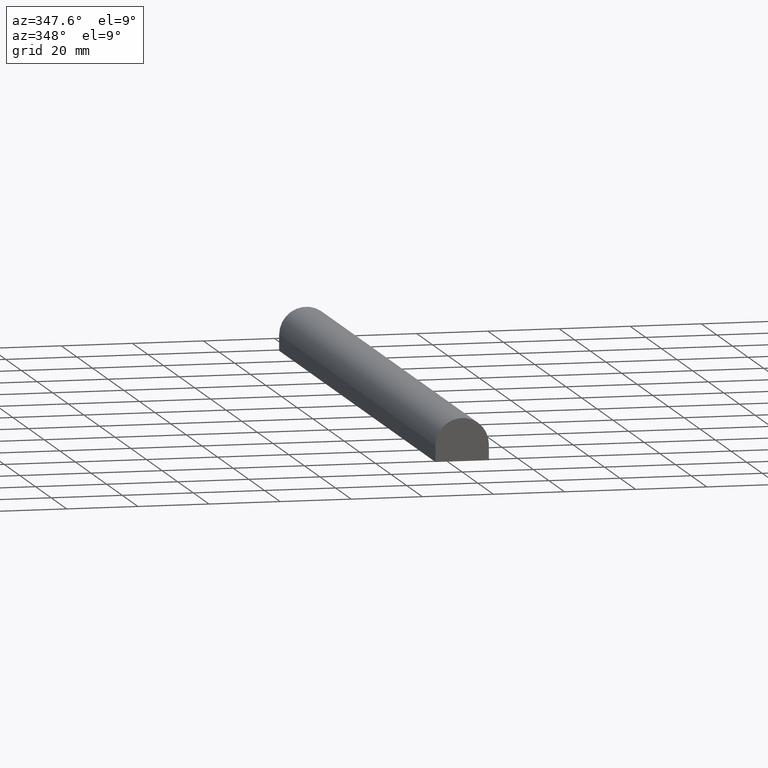
[diagram: clean part render]
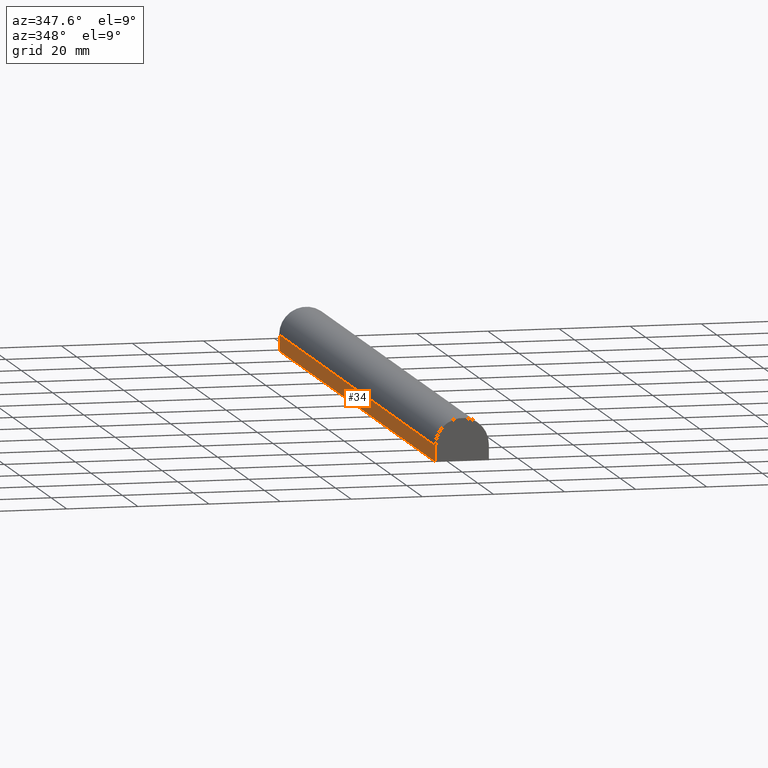
[diagram: same view with one face highlighted and labeled with its STEP entity id]
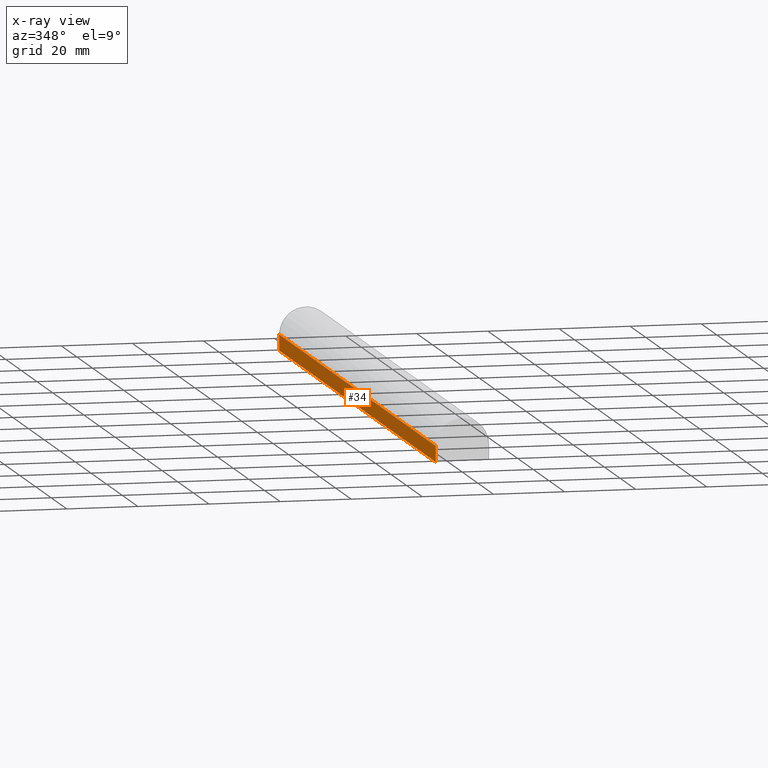
[diagram: x-ray of the same camera — body ghosted, the highlighted face saturated]
A machine part, auxiliary view. The second image highlights one B-rep face of the part: STEP entity #34.
The next image is the same camera in x-ray: the body ghosted, the highlighted face saturated — about 0% of this face is hidden behind the body in this view.
In plain terms, the highlighted planar face has unit normal (-1, 0, 0).
Its self-contained STEP definition (entity closure, byte-faithful):
#9 = CARTESIAN_POINT ( 'NONE',  ( -7.500000000000000000, 1000.000000000000000, -6.000000000000000000 ) ) ;
#14 = DIRECTION ( 'NONE',  ( 0.0000000000000000000, 0.0000000000000000000, 1.000000000000000000 ) ) ;
#15 = ORIENTED_EDGE ( 'NONE', *, *, #83, .T. ) ;
#33 = EDGE_CURVE ( 'NONE', #209, #179, #194, .T. ) ;
#34 = ADVANCED_FACE ( 'NONE', ( #97 ), #73, .T. ) ;
#49 = VERTEX_POINT ( 'NONE', #157 ) ;
#50 = LINE ( 'NONE', #58, #232 ) ;
#52 = EDGE_CURVE ( 'NONE', #49, #209, #50, .T. ) ;
#53 = VECTOR ( 'NONE', #105, 1000.000000000000000 ) ;
#57 = VECTOR ( 'NONE', #117, 1000.000000000000000 ) ;
#58 = CARTESIAN_POINT ( 'NONE',  ( -7.500000000000000000, 1000.000000000000000, -1.500000000000000000 ) ) ;
#62 = CARTESIAN_POINT ( 'NONE',  ( -7.500000000000000000, 0.0000000000000000000, -6.000000000000000000 ) ) ;
#65 = CARTESIAN_POINT ( 'NONE',  ( -7.500000000000000000, 200.0000000000000000, 0.0000000000000000000 ) ) ;
#67 = ORIENTED_EDGE ( 'NONE', *, *, #52, .F. ) ;
#73 = PLANE ( 'NONE',  #131 ) ;
#82 = VECTOR ( 'NONE', #88, 1000.000000000000000 ) ;
#83 = EDGE_CURVE ( 'NONE', #49, #154, #142, .T. ) ;
#88 = DIRECTION ( 'NONE',  ( 0.0000000000000000000, -1.000000000000000000, 0.0000000000000000000 ) ) ;
#92 = CARTESIAN_POINT ( 'NONE',  ( -7.500000000000000000, 200.0000000000000000, -6.000000000000000000 ) ) ;
#97 = FACE_OUTER_BOUND ( 'NONE', #101, .T. ) ;
#101 = EDGE_LOOP ( 'NONE', ( #102, #67, #15, #170 ) ) ;
#102 = ORIENTED_EDGE ( 'NONE', *, *, #33, .F. ) ;
#105 = DIRECTION ( 'NONE',  ( -0.0000000000000000000, -0.0000000000000000000, -1.000000000000000000 ) ) ;
#107 = CARTESIAN_POINT ( 'NONE',  ( -7.500000000000000000, 0.0000000000000000000, 0.0000000000000000000 ) ) ;
#117 = DIRECTION ( 'NONE',  ( -0.0000000000000000000, -0.0000000000000000000, -1.000000000000000000 ) ) ;
#123 = CARTESIAN_POINT ( 'NONE',  ( -7.500000000000000000, 1000.000000000000000, -1.500000000000000000 ) ) ;
#131 = AXIS2_PLACEMENT_3D ( 'NONE', #123, #182, #14 ) ;
#138 = CARTESIAN_POINT ( 'NONE',  ( -7.500000000000000000, 0.0000000000000000000, -1.500000000000000000 ) ) ;
#142 = LINE ( 'NONE', #65, #57 ) ;
#154 = VERTEX_POINT ( 'NONE', #92 ) ;
#155 = EDGE_CURVE ( 'NONE', #154, #179, #180, .T. ) ;
#157 = CARTESIAN_POINT ( 'NONE',  ( -7.500000000000000000, 200.0000000000000000, -1.500000000000000000 ) ) ;
#170 = ORIENTED_EDGE ( 'NONE', *, *, #155, .T. ) ;
#179 = VERTEX_POINT ( 'NONE', #62 ) ;
#180 = LINE ( 'NONE', #9, #82 ) ;
#182 = DIRECTION ( 'NONE',  ( -1.000000000000000000, 0.0000000000000000000, 0.0000000000000000000 ) ) ;
#194 = LINE ( 'NONE', #107, #53 ) ;
#209 = VERTEX_POINT ( 'NONE', #138 ) ;
#219 = DIRECTION ( 'NONE',  ( 0.0000000000000000000, -1.000000000000000000, 0.0000000000000000000 ) ) ;
#232 = VECTOR ( 'NONE', #219, 1000.000000000000000 ) ;